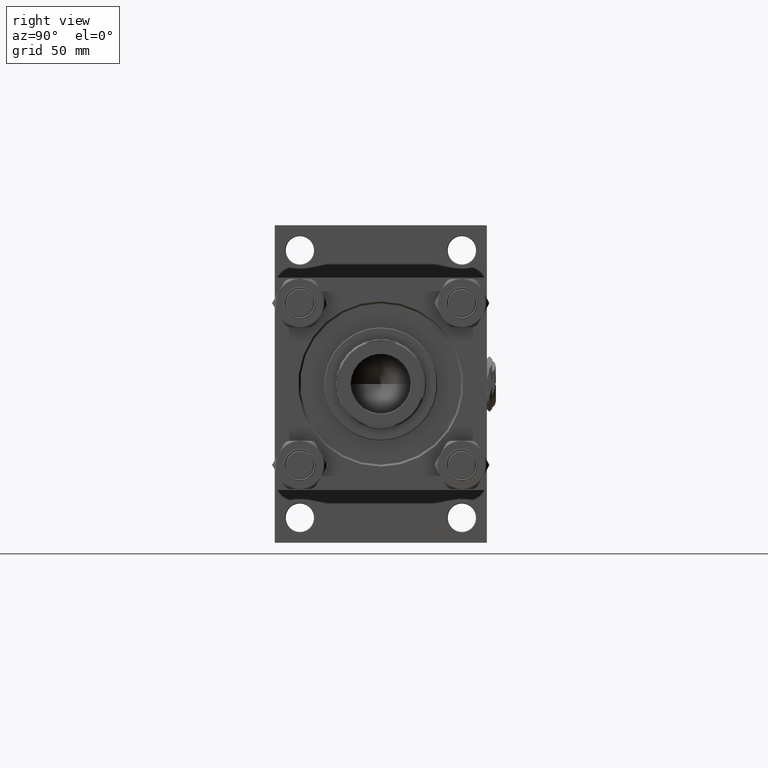
[diagram: clean part render]
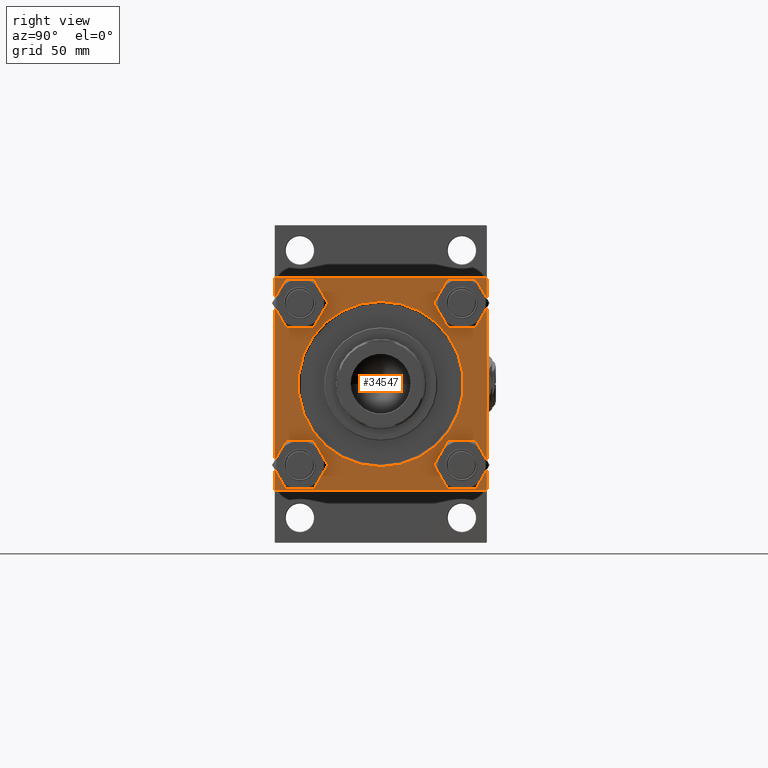
[diagram: same view with one face highlighted and labeled with its STEP entity id]
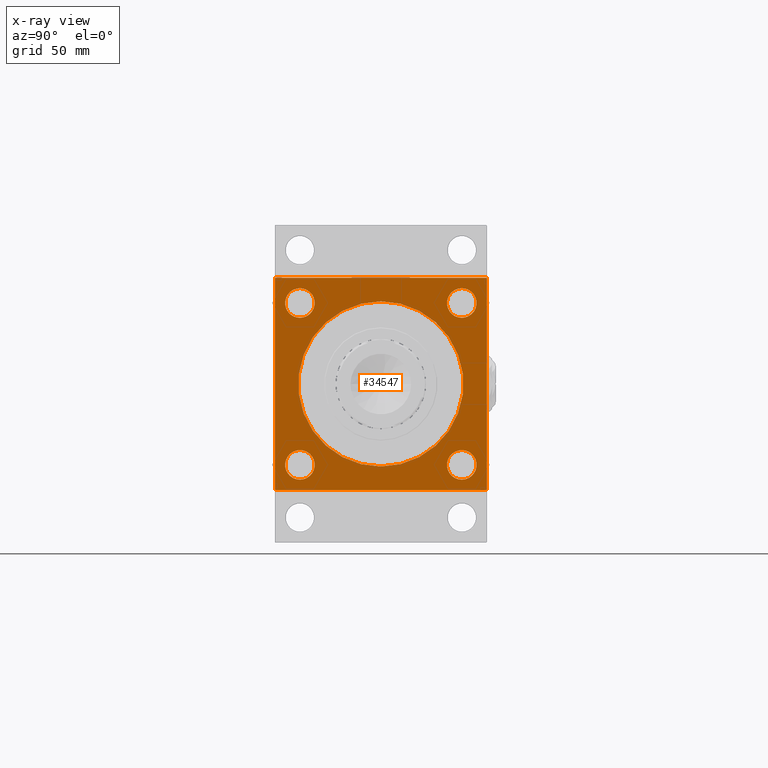
[diagram: x-ray of the same camera — body ghosted, the highlighted face saturated]
A machine part, right view. The second image highlights one B-rep face of the part: STEP entity #34547.
The next image is the same camera in x-ray: the body ghosted, the highlighted face saturated — about 0% of this face is hidden behind the body in this view.
In plain terms, the highlighted planar face has unit normal (-1, 0, 0).
Its self-contained STEP definition (entity closure, byte-faithful):
#106 = EDGE_CURVE ( 'NONE', #19313, #37201, #26296, .T. ) ;
#132 = CARTESIAN_POINT ( 'NONE',  ( 447.0000000000000000, 7.868355684521760090E-15, 64.25000000000014211 ) ) ;
#161 = EDGE_CURVE ( 'NONE', #26238, #43377, #27143, .T. ) ;
#357 = CARTESIAN_POINT ( 'NONE',  ( 447.0000000000000000, -82.00000000000004263, -82.50000000000002842 ) ) ;
#506 = ORIENTED_EDGE ( 'NONE', *, *, #39460, .T. ) ;
#548 = FACE_BOUND ( 'NONE', #678, .T. ) ;
#678 = EDGE_LOOP ( 'NONE', ( #27997, #33429 ) ) ;
#1006 = AXIS2_PLACEMENT_3D ( 'NONE', #41942, #21737, #37430 ) ;
#1085 = DIRECTION ( 'NONE',  ( 0.000000000000000000, -1.000000000000000000, -1.682156097916904081E-16 ) ) ;
#1164 = CARTESIAN_POINT ( 'NONE',  ( 447.0000000000000000, -62.94999999999998153, 51.45000000000000995 ) ) ;
#1241 = LINE ( 'NONE', #10583, #10273 ) ;
#1247 = CARTESIAN_POINT ( 'NONE',  ( 447.0000000000000000, 62.95000000000000284, 74.45000000000018758 ) ) ;
#1814 = EDGE_CURVE ( 'NONE', #17512, #32623, #37412, .T. ) ;
#1867 = VERTEX_POINT ( 'NONE', #5414 ) ;
#1902 = EDGE_LOOP ( 'NONE', ( #24316, #17430 ) ) ;
#2442 = DIRECTION ( 'NONE',  ( 0.000000000000000000, 0.000000000000000000, 1.000000000000000000 ) ) ;
#3994 = EDGE_LOOP ( 'NONE', ( #31550, #30728, #39534, #13469, #15808, #9175, #13148, #506 ) ) ;
#4588 = VERTEX_POINT ( 'NONE', #51189 ) ;
#4627 = DIRECTION ( 'NONE',  ( 0.000000000000000000, 0.000000000000000000, 1.000000000000000000 ) ) ;
#5124 = AXIS2_PLACEMENT_3D ( 'NONE', #12636, #25129, #4627 ) ;
#5325 = VERTEX_POINT ( 'NONE', #16830 ) ;
#5414 = CARTESIAN_POINT ( 'NONE',  ( 447.0000000000000000, -82.49999999999997158, 81.99999999999985789 ) ) ;
#6037 = EDGE_CURVE ( 'NONE', #40242, #10201, #27260, .T. ) ;
#6124 = CARTESIAN_POINT ( 'NONE',  ( 447.0000000000000000, 82.00000000000001421, -82.50000000000002842 ) ) ;
#6157 = DIRECTION ( 'NONE',  ( 0.000000000000000000, 0.000000000000000000, 1.000000000000000000 ) ) ;
#6373 = EDGE_CURVE ( 'NONE', #39592, #45836, #24700, .T. ) ;
#6404 = ORIENTED_EDGE ( 'NONE', *, *, #6037, .T. ) ;
#7260 = DIRECTION ( 'NONE',  ( -1.000000000000000000, -0.000000000000000000, 0.000000000000000000 ) ) ;
#7607 = CARTESIAN_POINT ( 'NONE',  ( 447.0000000000000000, -62.94999999999998153, -62.95000000000001705 ) ) ;
#8543 = FACE_BOUND ( 'NONE', #35718, .T. ) ;
#9175 = ORIENTED_EDGE ( 'NONE', *, *, #43694, .T. ) ;
#9184 = CARTESIAN_POINT ( 'NONE',  ( 447.0000000000000000, 81.99999999999995737, 82.50000000000000000 ) ) ;
#9293 = EDGE_CURVE ( 'NONE', #10201, #40242, #26520, .T. ) ;
#9661 = DIRECTION ( 'NONE',  ( -1.000000000000000000, -0.000000000000000000, 0.000000000000000000 ) ) ;
#9892 = CARTESIAN_POINT ( 'NONE',  ( 447.0000000000000000, 82.50000000000001421, 82.50000000000000000 ) ) ;
#10151 = CARTESIAN_POINT ( 'NONE',  ( 447.0000000000000000, -82.49999999999997158, 82.49999999999997158 ) ) ;
#10171 = AXIS2_PLACEMENT_3D ( 'NONE', #27217, #31464, #2442 ) ;
#10201 = VERTEX_POINT ( 'NONE', #39365 ) ;
#10273 = VECTOR ( 'NONE', #14044, 1000.000000000000114 ) ;
#10583 = CARTESIAN_POINT ( 'NONE',  ( 447.0000000000000000, -82.00000000000004263, -82.50000000000002842 ) ) ;
#10595 = CARTESIAN_POINT ( 'NONE',  ( 447.0000000000000000, 62.95000000000000284, 62.95000000000000284 ) ) ;
#11122 = AXIS2_PLACEMENT_3D ( 'NONE', #29863, #9661, #6157 ) ;
#11194 = CARTESIAN_POINT ( 'NONE',  ( 447.0000000000000000, 62.95000000000000284, 51.44999999999983231 ) ) ;
#11210 = ORIENTED_EDGE ( 'NONE', *, *, #161, .T. ) ;
#12636 = CARTESIAN_POINT ( 'NONE',  ( 447.0000000000000000, 62.95000000000000284, -62.95000000000000284 ) ) ;
#13012 = CIRCLE ( 'NONE', #14729, 11.50000000000017764 ) ;
#13077 = CARTESIAN_POINT ( 'NONE',  ( 447.0000000000000000, 0.000000000000000000, 0.000000000000000000 ) ) ;
#13148 = ORIENTED_EDGE ( 'NONE', *, *, #51075, .T. ) ;
#13469 = ORIENTED_EDGE ( 'NONE', *, *, #19128, .T. ) ;
#14044 = DIRECTION ( 'NONE',  ( 0.000000000000000000, 0.7071067811865573427, -0.7071067811865376918 ) ) ;
#14729 = AXIS2_PLACEMENT_3D ( 'NONE', #23698, #35662, #39137 ) ;
#14762 = ORIENTED_EDGE ( 'NONE', *, *, #6373, .T. ) ;
#15808 = ORIENTED_EDGE ( 'NONE', *, *, #43568, .F. ) ;
#16190 = CARTESIAN_POINT ( 'NONE',  ( 447.0000000000000000, -62.94999999999998153, -74.45000000000020179 ) ) ;
#16538 = PLANE ( 'NONE',  #28142 ) ;
#16792 = DIRECTION ( 'NONE',  ( 0.000000000000000000, 0.000000000000000000, 1.000000000000000000 ) ) ;
#16830 = CARTESIAN_POINT ( 'NONE',  ( 447.0000000000000000, -82.50000000000000000, -82.00000000000008527 ) ) ;
#17049 = DIRECTION ( 'NONE',  ( -1.000000000000000000, -0.000000000000000000, 0.000000000000000000 ) ) ;
#17315 = FACE_BOUND ( 'NONE', #50309, .T. ) ;
#17430 = ORIENTED_EDGE ( 'NONE', *, *, #1814, .T. ) ;
#17512 = VERTEX_POINT ( 'NONE', #47708 ) ;
#17599 = LINE ( 'NONE', #9892, #18852 ) ;
#17659 = VERTEX_POINT ( 'NONE', #6124 ) ;
#18398 = LINE ( 'NONE', #10151, #52354 ) ;
#18457 = EDGE_CURVE ( 'NONE', #1867, #5325, #18398, .T. ) ;
#18796 = LINE ( 'NONE', #35542, #35384 ) ;
#18852 = VECTOR ( 'NONE', #1085, 1000.000000000000000 ) ;
#18905 = EDGE_LOOP ( 'NONE', ( #33881, #14762 ) ) ;
#19128 = EDGE_CURVE ( 'NONE', #17659, #36683, #18796, .T. ) ;
#19313 = VERTEX_POINT ( 'NONE', #47199 ) ;
#19351 = LINE ( 'NONE', #39815, #33444 ) ;
#20093 = EDGE_CURVE ( 'NONE', #45836, #39592, #27794, .T. ) ;
#20375 = DIRECTION ( 'NONE',  ( 0.000000000000000000, 0.000000000000000000, 1.000000000000000000 ) ) ;
#20792 = FACE_OUTER_BOUND ( 'NONE', #3994, .T. ) ;
#21621 = CARTESIAN_POINT ( 'NONE',  ( 447.0000000000000000, -82.49999999999997158, 81.99999999999985789 ) ) ;
#21737 = DIRECTION ( 'NONE',  ( -1.000000000000000000, -0.000000000000000000, 0.000000000000000000 ) ) ;
#21933 = DIRECTION ( 'NONE',  ( 0.000000000000000000, 0.000000000000000000, 1.000000000000000000 ) ) ;
#23542 = AXIS2_PLACEMENT_3D ( 'NONE', #7607, #52570, #20375 ) ;
#23698 = CARTESIAN_POINT ( 'NONE',  ( 447.0000000000000000, 62.95000000000000284, -62.95000000000000284 ) ) ;
#24316 = ORIENTED_EDGE ( 'NONE', *, *, #51156, .T. ) ;
#24700 = CIRCLE ( 'NONE', #11122, 11.50000000000017764 ) ;
#24801 = LINE ( 'NONE', #45544, #35187 ) ;
#24808 = DIRECTION ( 'NONE',  ( 0.000000000000000000, -1.000000000000000000, 0.000000000000000000 ) ) ;
#25129 = DIRECTION ( 'NONE',  ( -1.000000000000000000, -0.000000000000000000, 0.000000000000000000 ) ) ;
#25160 = LINE ( 'NONE', #9184, #38545 ) ;
#25558 = CARTESIAN_POINT ( 'NONE',  ( 447.0000000000000000, 62.95000000000000284, -74.45000000000018758 ) ) ;
#25875 = LINE ( 'NONE', #21621, #46174 ) ;
#26111 = CARTESIAN_POINT ( 'NONE',  ( 447.0000000000000000, 82.50000000000001421, -81.99999999999997158 ) ) ;
#26189 = CARTESIAN_POINT ( 'NONE',  ( 447.0000000000000000, 0.000000000000000000, 0.000000000000000000 ) ) ;
#26238 = VERTEX_POINT ( 'NONE', #11194 ) ;
#26296 = CIRCLE ( 'NONE', #10171, 11.50000000000001066 ) ;
#26395 = CARTESIAN_POINT ( 'NONE',  ( 447.0000000000000000, -62.94999999999998153, -51.44999999999984652 ) ) ;
#26520 = CIRCLE ( 'NONE', #1006, 64.25000000000014211 ) ;
#26809 = DIRECTION ( 'NONE',  ( 0.000000000000000000, 0.000000000000000000, 1.000000000000000000 ) ) ;
#27143 = CIRCLE ( 'NONE', #34800, 11.50000000000017764 ) ;
#27217 = CARTESIAN_POINT ( 'NONE',  ( 447.0000000000000000, -62.94999999999998153, 62.95000000000001705 ) ) ;
#27260 = CIRCLE ( 'NONE', #39138, 64.25000000000014211 ) ;
#27467 = EDGE_CURVE ( 'NONE', #43377, #26238, #39801, .T. ) ;
#27506 = VERTEX_POINT ( 'NONE', #357 ) ;
#27794 = CIRCLE ( 'NONE', #23542, 11.50000000000017764 ) ;
#27997 = ORIENTED_EDGE ( 'NONE', *, *, #29229, .T. ) ;
#28142 = AXIS2_PLACEMENT_3D ( 'NONE', #13077, #17049, #16792 ) ;
#28316 = DIRECTION ( 'NONE',  ( -1.000000000000000000, -0.000000000000000000, 0.000000000000000000 ) ) ;
#29229 = EDGE_CURVE ( 'NONE', #37201, #19313, #33874, .T. ) ;
#29493 = CARTESIAN_POINT ( 'NONE',  ( 447.0000000000000000, -62.94999999999998153, 62.95000000000001705 ) ) ;
#29595 = DIRECTION ( 'NONE',  ( -0.000000000000000000, -0.7071067811865574537, -0.7071067811865376918 ) ) ;
#29863 = CARTESIAN_POINT ( 'NONE',  ( 447.0000000000000000, -62.94999999999998153, -62.95000000000001705 ) ) ;
#30363 = DIRECTION ( 'NONE',  ( 0.000000000000000000, -1.682156097916903834E-16, -1.000000000000000000 ) ) ;
#30728 = ORIENTED_EDGE ( 'NONE', *, *, #45904, .T. ) ;
#31290 = DIRECTION ( 'NONE',  ( -0.000000000000000000, 0.7071067811865081598, 0.7071067811865867636 ) ) ;
#31464 = DIRECTION ( 'NONE',  ( -1.000000000000000000, -0.000000000000000000, 0.000000000000000000 ) ) ;
#31539 = ORIENTED_EDGE ( 'NONE', *, *, #27467, .T. ) ;
#31550 = ORIENTED_EDGE ( 'NONE', *, *, #18457, .T. ) ;
#32623 = VERTEX_POINT ( 'NONE', #25558 ) ;
#32704 = VERTEX_POINT ( 'NONE', #39385 ) ;
#33429 = ORIENTED_EDGE ( 'NONE', *, *, #106, .T. ) ;
#33444 = VECTOR ( 'NONE', #39568, 1000.000000000000000 ) ;
#33874 = CIRCLE ( 'NONE', #50022, 11.50000000000001066 ) ;
#33881 = ORIENTED_EDGE ( 'NONE', *, *, #20093, .T. ) ;
#34547 = ADVANCED_FACE ( 'NONE', ( #49244, #36750, #8543, #548, #17315, #20792 ), #16538, .F. ) ;
#34712 = AXIS2_PLACEMENT_3D ( 'NONE', #10595, #28316, #26809 ) ;
#34800 = AXIS2_PLACEMENT_3D ( 'NONE', #43700, #7260, #39964 ) ;
#35187 = VECTOR ( 'NONE', #24808, 1000.000000000000000 ) ;
#35384 = VECTOR ( 'NONE', #31290, 1000.000000000000000 ) ;
#35542 = CARTESIAN_POINT ( 'NONE',  ( 447.0000000000000000, 82.50000000000001421, -81.99999999999997158 ) ) ;
#35588 = ORIENTED_EDGE ( 'NONE', *, *, #9293, .T. ) ;
#35662 = DIRECTION ( 'NONE',  ( -1.000000000000000000, -0.000000000000000000, 0.000000000000000000 ) ) ;
#35718 = EDGE_LOOP ( 'NONE', ( #11210, #31539 ) ) ;
#36683 = VERTEX_POINT ( 'NONE', #26111 ) ;
#36750 = FACE_BOUND ( 'NONE', #1902, .T. ) ;
#37201 = VERTEX_POINT ( 'NONE', #1164 ) ;
#37412 = CIRCLE ( 'NONE', #5124, 11.50000000000017764 ) ;
#37430 = DIRECTION ( 'NONE',  ( 0.000000000000000000, 0.000000000000000000, 1.000000000000000000 ) ) ;
#37997 = DIRECTION ( 'NONE',  ( 0.000000000000000000, 0.000000000000000000, 1.000000000000000000 ) ) ;
#38431 = DIRECTION ( 'NONE',  ( -1.000000000000000000, -0.000000000000000000, 0.000000000000000000 ) ) ;
#38545 = VECTOR ( 'NONE', #44839, 1000.000000000000000 ) ;
#39137 = DIRECTION ( 'NONE',  ( 0.000000000000000000, 0.000000000000000000, 1.000000000000000000 ) ) ;
#39138 = AXIS2_PLACEMENT_3D ( 'NONE', #26189, #38431, #21933 ) ;
#39245 = CARTESIAN_POINT ( 'NONE',  ( 447.0000000000000000, 81.99999999999995737, 82.50000000000000000 ) ) ;
#39365 = CARTESIAN_POINT ( 'NONE',  ( 447.0000000000000000, 0.000000000000000000, -64.25000000000014211 ) ) ;
#39385 = CARTESIAN_POINT ( 'NONE',  ( 447.0000000000000000, -81.99999999999985789, 82.49999999999997158 ) ) ;
#39460 = EDGE_CURVE ( 'NONE', #32704, #1867, #25875, .T. ) ;
#39534 = ORIENTED_EDGE ( 'NONE', *, *, #43893, .F. ) ;
#39568 = DIRECTION ( 'NONE',  ( 0.000000000000000000, 0.000000000000000000, -1.000000000000000000 ) ) ;
#39592 = VERTEX_POINT ( 'NONE', #26395 ) ;
#39801 = CIRCLE ( 'NONE', #34712, 11.50000000000017764 ) ;
#39815 = CARTESIAN_POINT ( 'NONE',  ( 447.0000000000000000, 82.50000000000001421, 82.50000000000000000 ) ) ;
#39964 = DIRECTION ( 'NONE',  ( 0.000000000000000000, 0.000000000000000000, 1.000000000000000000 ) ) ;
#40242 = VERTEX_POINT ( 'NONE', #132 ) ;
#41942 = CARTESIAN_POINT ( 'NONE',  ( 447.0000000000000000, 0.000000000000000000, 0.000000000000000000 ) ) ;
#43377 = VERTEX_POINT ( 'NONE', #1247 ) ;
#43568 = EDGE_CURVE ( 'NONE', #4588, #36683, #19351, .T. ) ;
#43694 = EDGE_CURVE ( 'NONE', #4588, #49693, #25160, .T. ) ;
#43700 = CARTESIAN_POINT ( 'NONE',  ( 447.0000000000000000, 62.95000000000000284, 62.95000000000000284 ) ) ;
#43893 = EDGE_CURVE ( 'NONE', #17659, #27506, #24801, .T. ) ;
#44839 = DIRECTION ( 'NONE',  ( 0.000000000000000000, -0.7071067811865867636, 0.7071067811865081598 ) ) ;
#45544 = CARTESIAN_POINT ( 'NONE',  ( 447.0000000000000000, 82.50000000000001421, -82.50000000000002842 ) ) ;
#45707 = DIRECTION ( 'NONE',  ( -1.000000000000000000, -0.000000000000000000, 0.000000000000000000 ) ) ;
#45836 = VERTEX_POINT ( 'NONE', #16190 ) ;
#45904 = EDGE_CURVE ( 'NONE', #5325, #27506, #1241, .T. ) ;
#46174 = VECTOR ( 'NONE', #29595, 999.9999999999998863 ) ;
#47199 = CARTESIAN_POINT ( 'NONE',  ( 447.0000000000000000, -62.94999999999998153, 74.45000000000003126 ) ) ;
#47708 = CARTESIAN_POINT ( 'NONE',  ( 447.0000000000000000, 62.95000000000000284, -51.44999999999983231 ) ) ;
#49244 = FACE_BOUND ( 'NONE', #18905, .T. ) ;
#49693 = VERTEX_POINT ( 'NONE', #39245 ) ;
#50022 = AXIS2_PLACEMENT_3D ( 'NONE', #29493, #45707, #37997 ) ;
#50309 = EDGE_LOOP ( 'NONE', ( #35588, #6404 ) ) ;
#51075 = EDGE_CURVE ( 'NONE', #49693, #32704, #17599, .T. ) ;
#51156 = EDGE_CURVE ( 'NONE', #32623, #17512, #13012, .T. ) ;
#51189 = CARTESIAN_POINT ( 'NONE',  ( 447.0000000000000000, 82.50000000000001421, 82.00000000000000000 ) ) ;
#52354 = VECTOR ( 'NONE', #30363, 1000.000000000000000 ) ;
#52570 = DIRECTION ( 'NONE',  ( -1.000000000000000000, -0.000000000000000000, 0.000000000000000000 ) ) ;